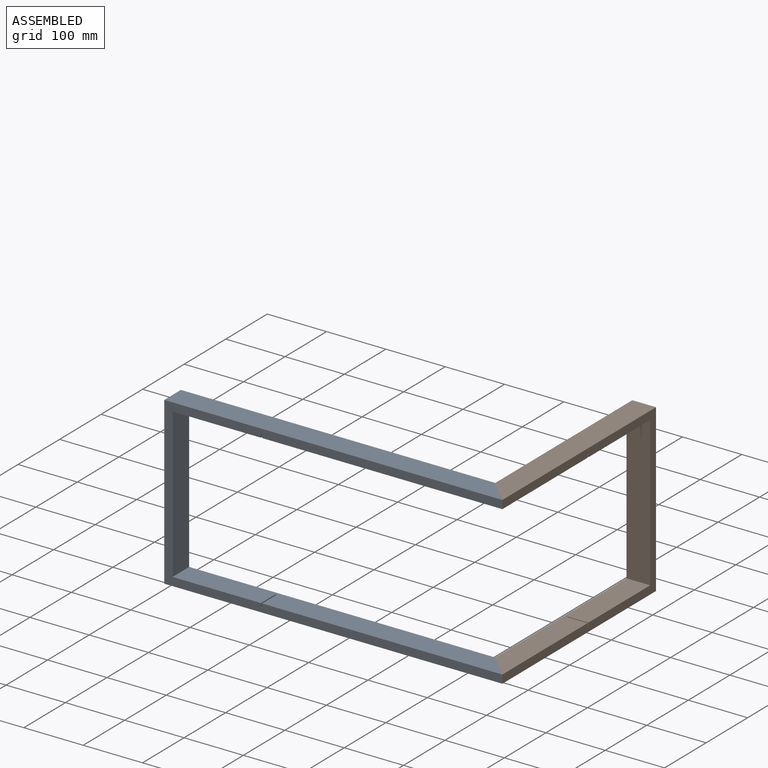
[diagram: assembled view]
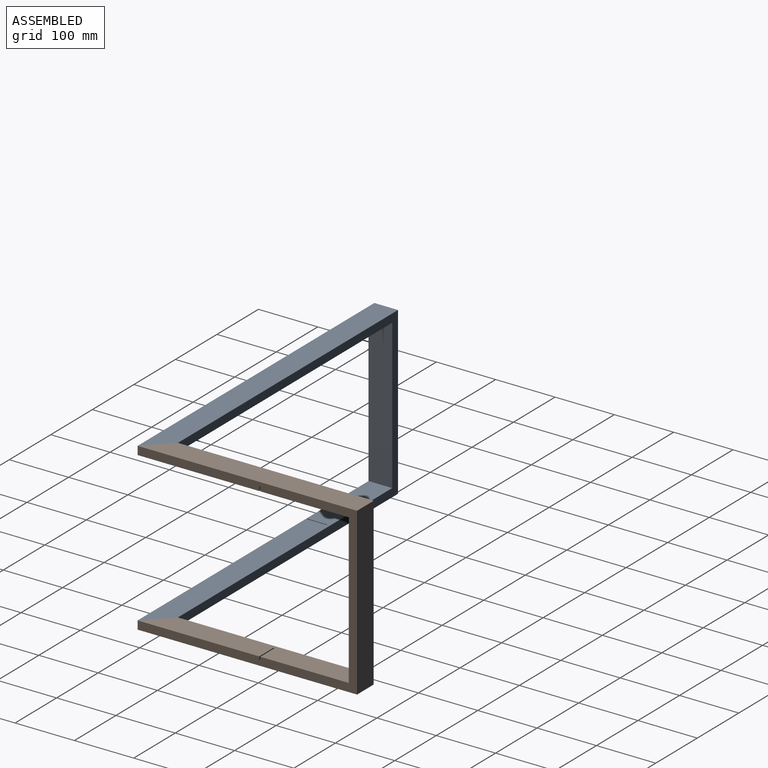
[diagram: assembled view, second angle]
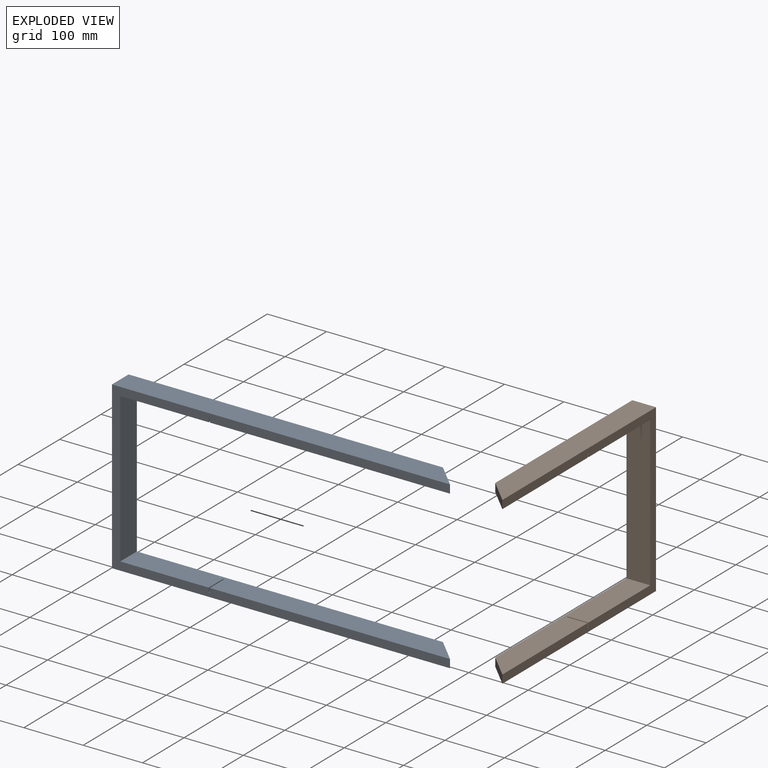
[diagram: exploded view]
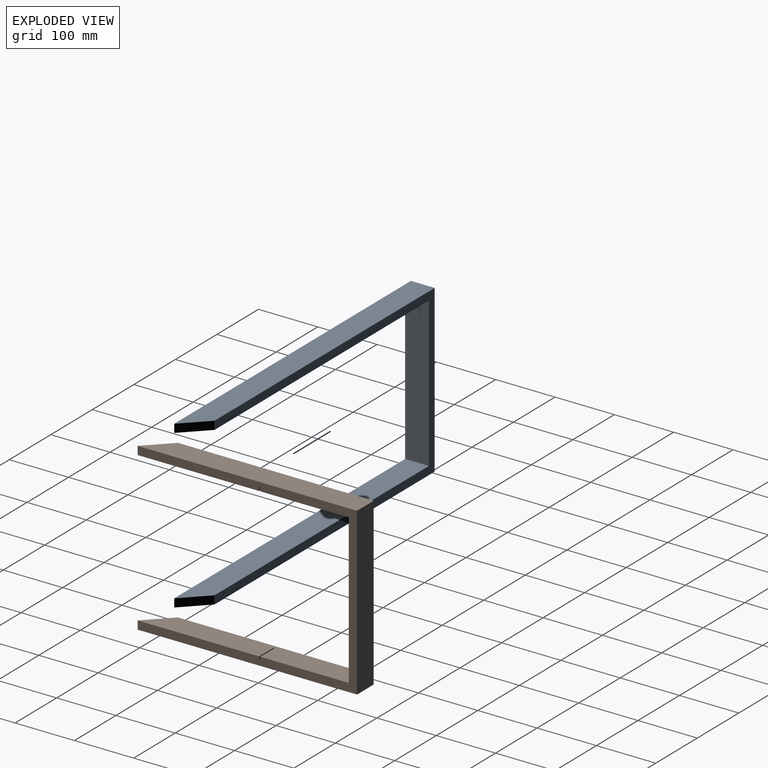
[diagram: exploded view, second angle]
ASSEMBLY  parts=2 mates=3
PART A: 18 faces, bbox 570x40x280 mm
  f0: plane 556x40mm, normal (0,0,-1), area 21370mm2, adj f3,f6,f7,f8,f9,f10,f16
  f1: plane 556x40mm, normal (0,0,1), area 21370mm2, adj f3,f6,f7,f12,f14,f15,f17
  f2: plane 570x40mm, normal (0,0,1), area 22000mm2, adj f3,f4,f7,f16
  f3: plane 570x280mm, normal (0,-1,0), area 19460mm2, adj f0,f1,f2,f4,f5,f6,f9,f10
  f4: plane 280x40mm, normal (-1,0,0), area 11200mm2, adj f2,f3,f5,f7
  f5: plane 570x40mm, normal (0,0,-1), area 22000mm2, adj f3,f4,f7,f17
  f6: plane 252x40mm, normal (1,0,0), area 10080mm2, adj f0,f1,f3,f7
  f7: plane 530x280mm, normal (0,1,0), area 18368mm2, adj f0,f1,f2,f4,f5,f6,f16,f17
  f8: plane 7x2mm, normal (0,-1,0), area 14mm2, adj f0,f9,f10,f11
  f9: plane 35x7mm, normal (1,0,0), area 245mm2, adj f0,f3,f8,f11
  f10: plane 35x7mm, normal (-1,0,0), area 245mm2, adj f0,f3,f8,f11
  f11: plane 35x2mm, normal (0,0,-1), area 70mm2, adj f3,f8,f9,f10
  f12: plane 35x7mm, normal (1,0,0), area 245mm2, adj f1,f3,f13,f15
  f13: plane 35x2mm, normal (0,0,1), area 70mm2, adj f3,f12,f14,f15
  f14: plane 35x7mm, normal (-1,0,0), area 245mm2, adj f1,f3,f13,f15
  f15: plane 7x2mm, normal (0,-1,0), area 14mm2, adj f1,f12,f13,f14
  f16: plane 40x40mm, normal (0.71,0.71,0), area 792mm2, adj f0,f2,f3,f7
  f17: plane 40x40mm, normal (0.71,0.71,0), area 792mm2, adj f1,f3,f5,f7
PART B: 18 faces, bbox 370x40x280 mm
  f0: plane 356x40mm, normal (0,0,-1), area 13370mm2, adj f3,f6,f7,f8,f9,f10,f16
  f1: plane 356x40mm, normal (0,0,1), area 13370mm2, adj f3,f6,f7,f12,f14,f15,f17
  f2: plane 370x40mm, normal (0,0,1), area 14000mm2, adj f3,f4,f7,f16
  f3: plane 370x280mm, normal (0,-1,0), area 13860mm2, adj f0,f1,f2,f4,f5,f6,f9,f10
  f4: plane 280x40mm, normal (-1,0,0), area 11200mm2, adj f2,f3,f5,f7
  f5: plane 370x40mm, normal (0,0,-1), area 14000mm2, adj f3,f4,f7,f17
  f6: plane 252x40mm, normal (1,0,0), area 10080mm2, adj f0,f1,f3,f7
  f7: plane 330x280mm, normal (0,1,0), area 12768mm2, adj f0,f1,f2,f4,f5,f6,f16,f17
  f8: plane 7x2mm, normal (0,-1,0), area 14mm2, adj f0,f9,f10,f11
  f9: plane 35x7mm, normal (1,0,0), area 245mm2, adj f0,f3,f8,f11
  f10: plane 35x7mm, normal (-1,0,0), area 245mm2, adj f0,f3,f8,f11
  f11: plane 35x2mm, normal (0,0,-1), area 70mm2, adj f3,f8,f9,f10
  f12: plane 35x7mm, normal (1,0,0), area 245mm2, adj f1,f3,f13,f15
  f13: plane 35x2mm, normal (0,0,1), area 70mm2, adj f3,f12,f14,f15
  f14: plane 35x7mm, normal (-1,0,0), area 245mm2, adj f1,f3,f13,f15
  f15: plane 7x2mm, normal (0,-1,0), area 14mm2, adj f1,f12,f13,f14
  f16: plane 40x40mm, normal (0.71,0.71,0), area 792mm2, adj f0,f2,f3,f7
  f17: plane 40x40mm, normal (0.71,0.71,0), area 792mm2, adj f1,f3,f5,f7
PLACE A t=(-287.49,-82.74,0)mm
PLACE B rot(axis=(0.71,-0.71,0),180deg) t=(-267.49,-102.74,0)mm
MATE planar B.f0 <-> A.f1  axis (0,0,1) through (-227.49,-20.24,-126)mm
MATE planar B.f16 <-> A.f16  axis (-0.71,-0.71,0) through (-247.49,-102.74,-133)mm
MATE slider A.f13 <-> B.f11  axis (0,0,-1) through (-227.49,-122.74,-133)mm
